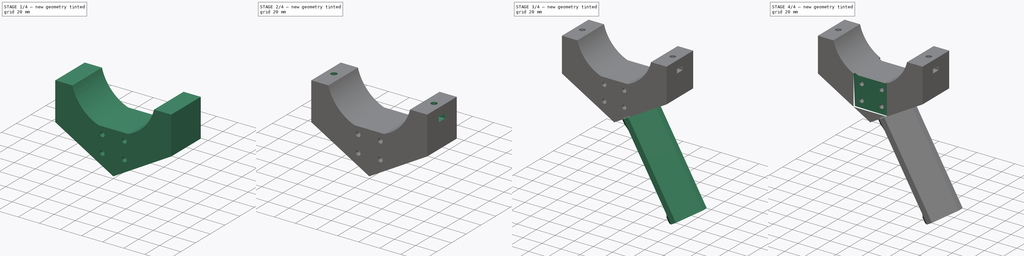
[diagram: build sequence overview — one tinted view per stage of 4, left to right]
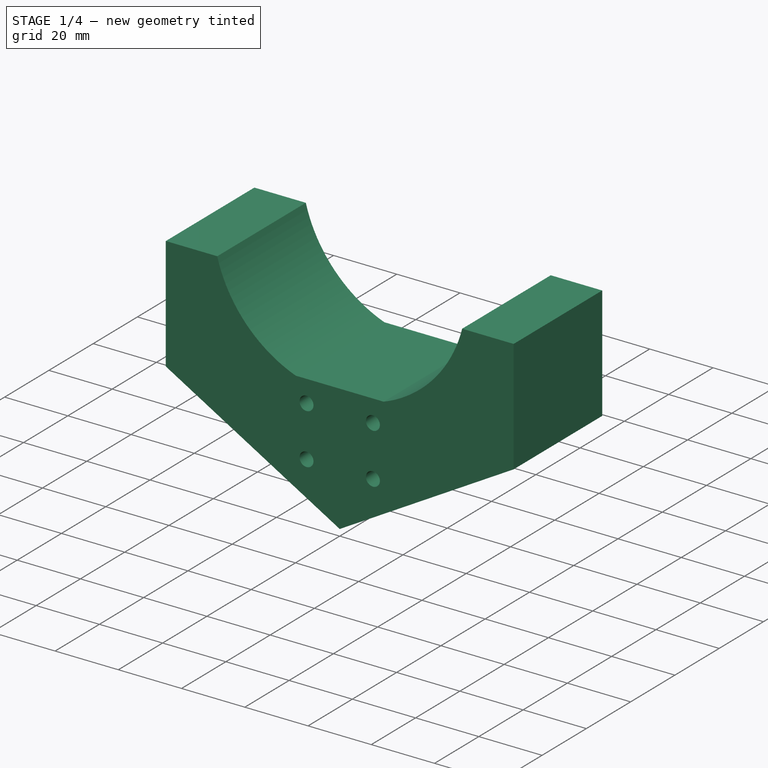
[diagram: stage 1 of 4 — iso view after this stage's code; geometry added in this stage tinted green]
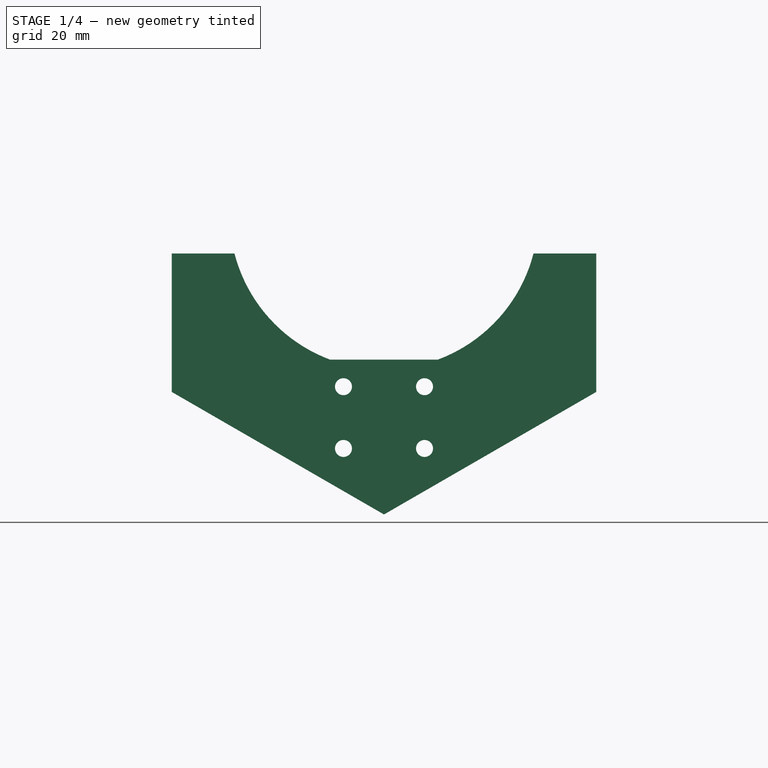
[diagram: stage 1 of 4 — front view after this stage's code; geometry added in this stage tinted green]
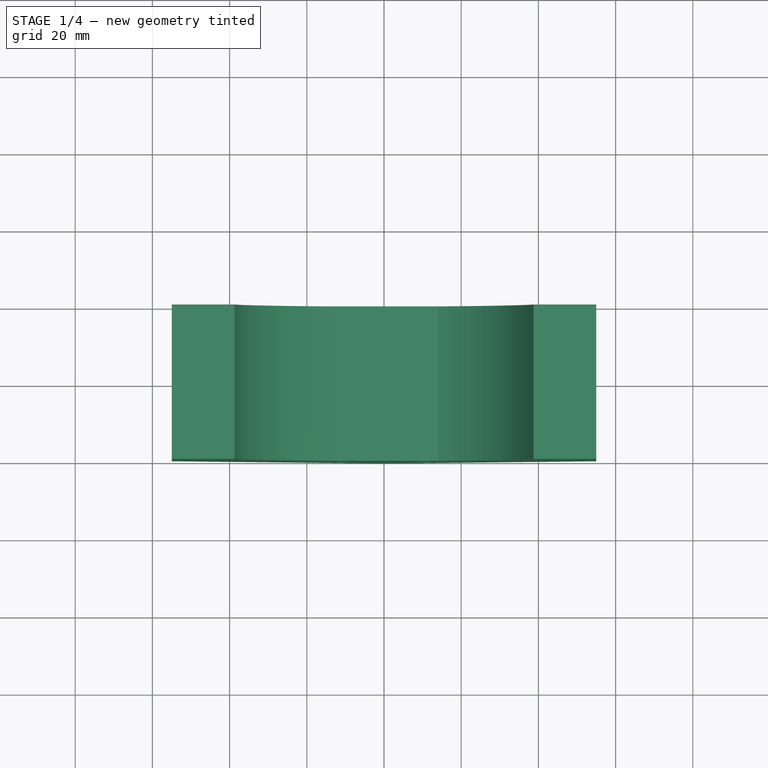
[diagram: stage 1 of 4 — top view after this stage's code; geometry added in this stage tinted green]
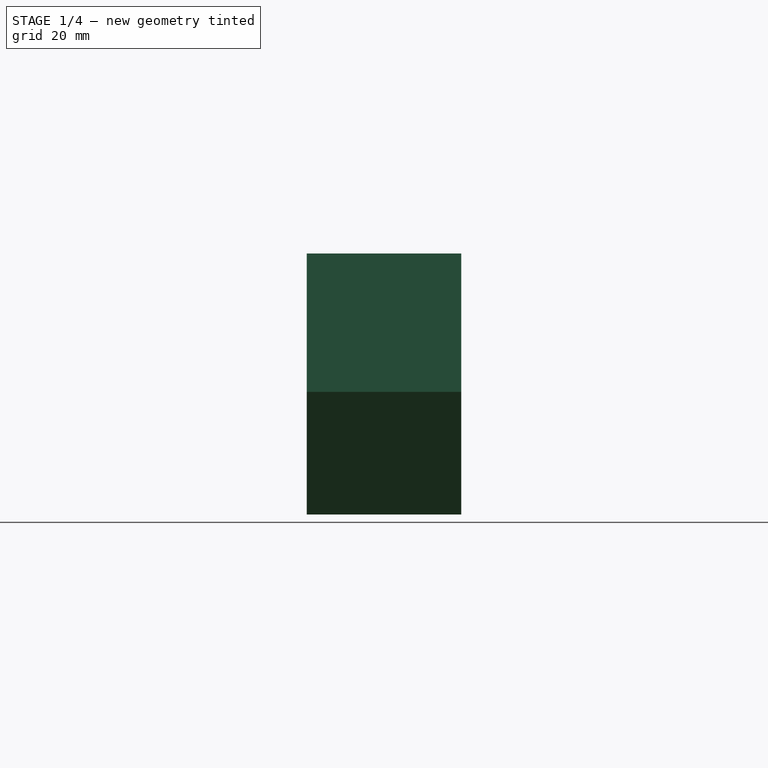
[diagram: stage 1 of 4 — right view after this stage's code; geometry added in this stage tinted green]
FCSTD DOCUMENT  (FreeCAD 0.18.4R)
Label: part6
License: All rights reserved
LicenseURL: http://en.wikipedia.org/wiki/All_rights_reserved
objects: Sketcher::SketchObject×7, PartDesign::Hole×3, PartDesign::Pad×2, PartDesign::Pocket×2, PartDesign::Chamfer×1, PartDesign::Mirrored×1, PartDesign::Body×1, App::Part×1
note: 24 computed .brp shape members not serialized (recipe doc carries the construction recipe); baked Part::Feature solids carry a one-line shape summary decoded from their .brp

FEATURE [Sketcher::SketchObject] Sketch
  MapMode = 5
  Placement = pos=(0,0,0) rot=(1,0,0;1.5708rad)
  Support = -> [XZ_Plane001]
  sketch-geometry (10):
    g0: ArcOfCircle CenterX=-1.36e-14 CenterY=0 CenterZ=0 NormalX=0 NormalY=0 NormalZ=1 AngleXU=0 Radius=40 StartAngle=5.06781 EndAngle=6.03051
    g1: ArcOfCircle CenterX=0 CenterY=0 CenterZ=0 NormalX=0 NormalY=0 NormalZ=1 AngleXU=0 Radius=40 StartAngle=3.39427 EndAngle=4.35697
    g2: LineSegment StartX=38.7298 StartY=-10 StartZ=0 EndX=55 EndY=-10 EndZ=0
    g3: LineSegment StartX=55 StartY=-10 StartZ=0 EndX=55 EndY=-45.8494 EndZ=0
    g4: LineSegment StartX=-55 StartY=-45.8494 StartZ=0 EndX=-55 EndY=-10 EndZ=0
    g5: LineSegment StartX=-55 StartY=-10 StartZ=0 EndX=-38.7298 EndY=-10 EndZ=0
    g6: LineSegment StartX=-13.9194 StartY=-37.5 StartZ=0 EndX=13.9194 EndY=-37.5 EndZ=0
    g7: LineSegment StartX=0 StartY=-77.6036 StartZ=0 EndX=55 EndY=-45.8494 EndZ=0
    g8: LineSegment StartX=-55 StartY=-45.8494 StartZ=0 EndX=0 EndY=-77.6036 EndZ=0
    g9: GeomPoint X=17.5 Y=-67.5 Z=0
  constraints (26):
    c: Coincident(g2,g0)
    c: Horizontal(g2)
    c: Coincident(g3,g2)
    c: Vertical(g3)
    c: Coincident(g5,g4)
    c: Coincident(g5,g1)
    c: Coincident(g6,g1)
    c: Coincident(g6,g0)
    c: Symmetric(g1,g0,g-2)
    c: Symmetric(g1,g0,g-2)
    c: Symmetric(g4,g2,g-2)
    c: Coincident(g1,g-1)
    c: Coincident(g0,g1)
    c: Radius(g0) = 40
    c: DistanceY(g0,g0) = 37.5
    c: DistanceY(g2,g0) = 10
    c: Coincident(g7,g3)
    c: Coincident(g4,g8)
    c: Symmetric(g4,g3,g-2)
    c: DistanceX(g0,g2) = 55
    c: Coincident(g8,g7)
    c: PointOnObject(g7,g-2)
    c: PointOnObject(g9,g7)
    c: DistanceY(g9,g0) = 30
    c: Angle(g7,g8) = 2.0944
    c: DistanceX(g7,g9) = 17.5
FEATURE [PartDesign::Pad] Pad
  Length = 40
  Length2 = 100
  Midplane = true
  Placement = pos=(0,0,0) rot=(1,0,0;1.5708rad)
  Profile = -> Sketch
  Type = 0
FEATURE [Sketcher::SketchObject] Sketch003
  MapMode = 5
  Placement = pos=(0,-20,-4e-15) rot=(1,0,0;1.5708rad)
  sketch-geometry (4):
    g0: Circle CenterX=-10.5 CenterY=-44.5 CenterZ=0 NormalX=0 NormalY=0 NormalZ=1 AngleXU=0 Radius=1.62677
    g1: Circle CenterX=10.5 CenterY=-44.5 CenterZ=0 NormalX=0 NormalY=0 NormalZ=1 AngleXU=0 Radius=1.92791
    g2: Circle CenterX=-10.5 CenterY=-60.5 CenterZ=0 NormalX=0 NormalY=0 NormalZ=1 AngleXU=0 Radius=3.05559
    g3: Circle CenterX=10.5 CenterY=-60.5 CenterZ=0 NormalX=0 NormalY=0 NormalZ=1 AngleXU=0 Radius=2.70732
  constraints (6):
    c: Symmetric(g0,g1,g-2)
    c: Symmetric(g2,g3,g-2)
    c: DistanceX(g0,g1) = 21
    c: DistanceX(g2,g3) = 21
    c: DistanceY(g3,g1) = 16
    c: DistanceY(g3,g-1) = 60.5
FEATURE [PartDesign::Hole] Hole
  BaseFeature = -> Pad
  Depth = 25
  DepthType = 1
  Diameter = 4.4
  DrillPoint = 0
  DrillPointAngle = 118
  HoleCutCountersinkAngle = 90
  HoleCutDepth = 0
  HoleCutDiameter = 4
  HoleCutType = 0
  ModelActualThread = false
  Placement = pos=(0,0,0) rot=(1,0,0;1.5708rad)
  Profile = -> Sketch003
  Tapered = false
  TaperedAngle = 90
  ThreadAngle = 0
  ThreadClass = 0
  ThreadCutOffInner = 0
  ThreadCutOffOuter = 0
  ThreadDirection = 0
  ThreadFit = 0
  ThreadPitch = 0
  ThreadSize = 5
  ThreadType = 1
  Threaded = false
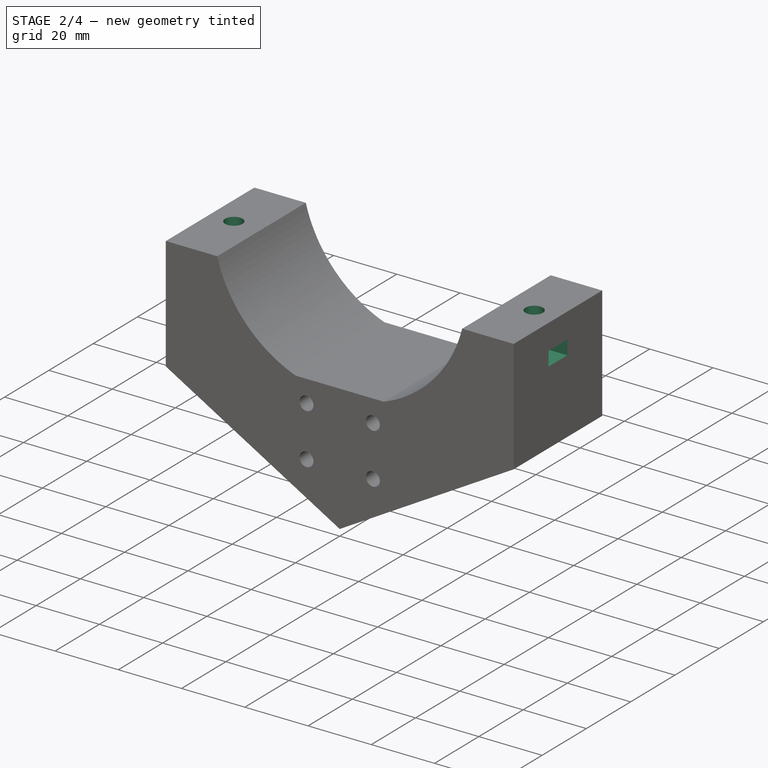
[diagram: stage 2 of 4 — iso view after this stage's code; geometry added in this stage tinted green]
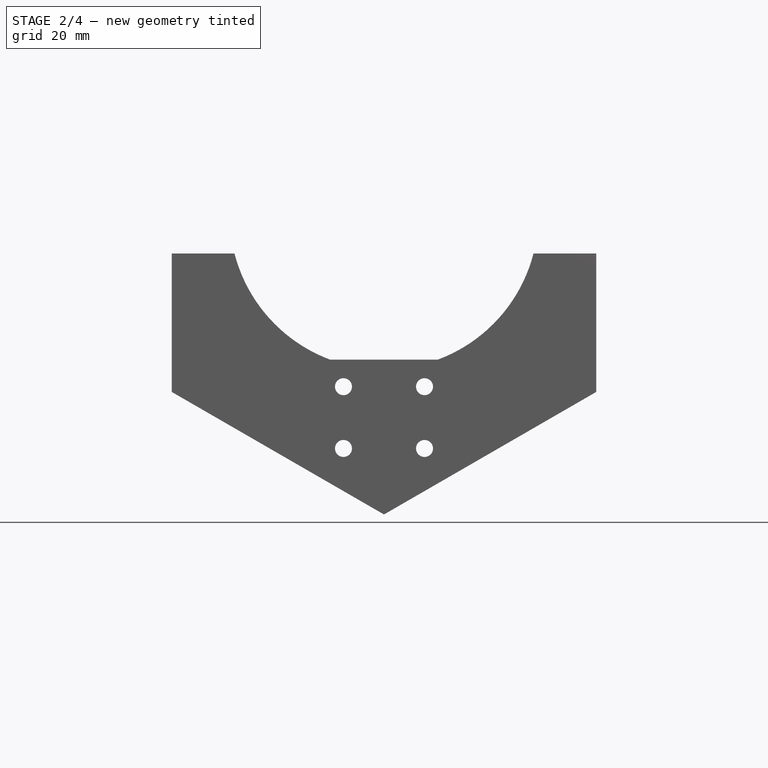
[diagram: stage 2 of 4 — front view after this stage's code; geometry added in this stage tinted green]
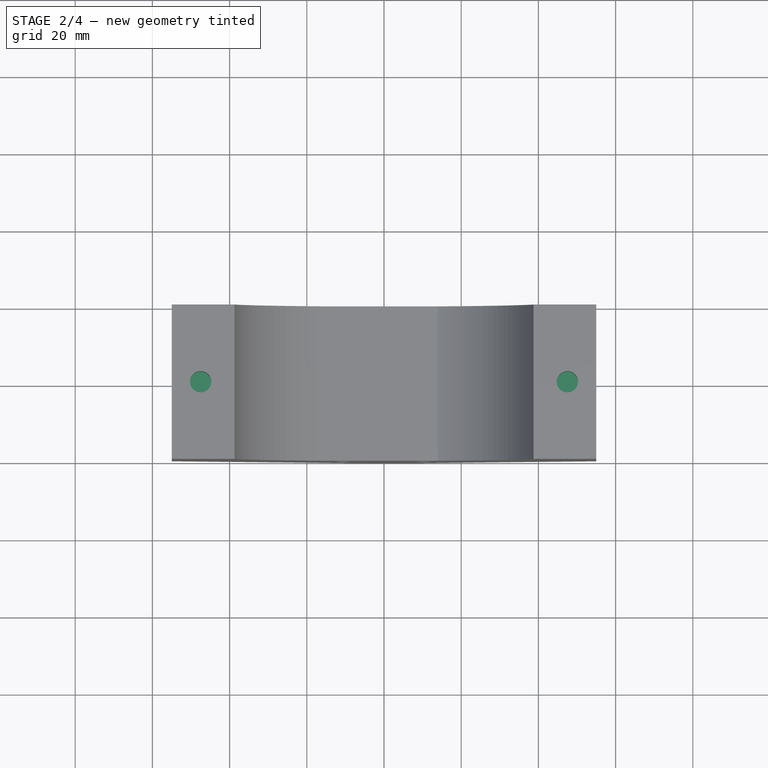
[diagram: stage 2 of 4 — top view after this stage's code; geometry added in this stage tinted green]
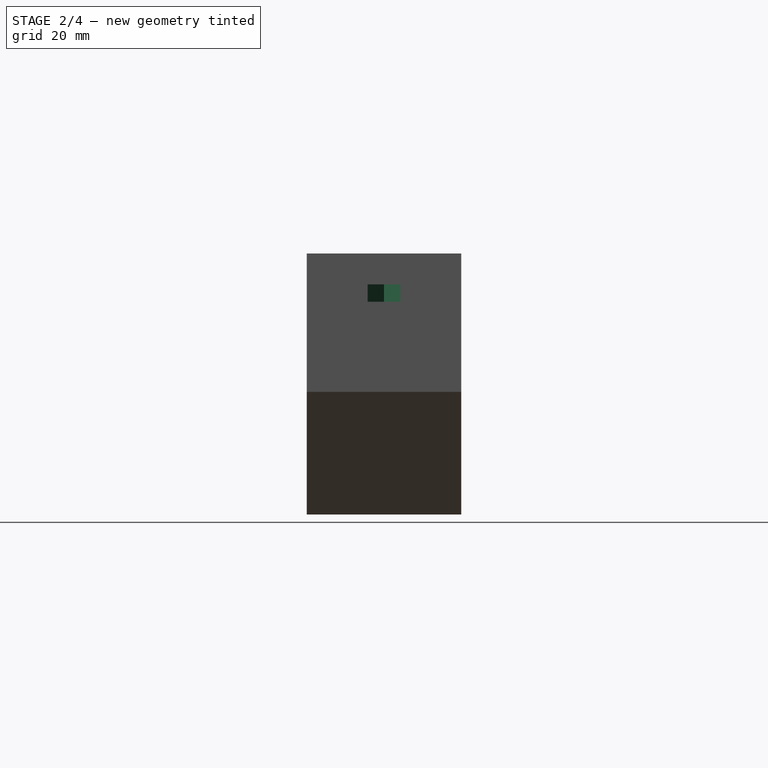
[diagram: stage 2 of 4 — right view after this stage's code; geometry added in this stage tinted green]
FEATURE [Sketcher::SketchObject] Sketch006
  AttachmentOffset = pos=(0,0,-8) rot=(0,0,1;0rad)
  MapMode = 5
  Placement = pos=(0,4e-15,-18) rot=(0,0,1;3.14159rad)
  sketch-geometry (10):
    g0: LineSegment StartX=55 StartY=4.25 StartZ=0 EndX=45.0463 EndY=4.25 EndZ=0
    g1: LineSegment StartX=45.0463 StartY=4.25 StartZ=0 EndX=42.5925 EndY=0 EndZ=0
    g2: LineSegment StartX=42.5925 StartY=0 StartZ=0 EndX=45.0463 EndY=-4.25 EndZ=0
    g3: LineSegment StartX=45.0463 StartY=-4.25 StartZ=0 EndX=55 EndY=-4.25 EndZ=0
    g4: LineSegment StartX=55 StartY=-4.25 StartZ=0 EndX=55 EndY=4.25 EndZ=0
    g5: LineSegment StartX=-55 StartY=4.25 StartZ=0 EndX=-55 EndY=-4.25 EndZ=0
    g6: LineSegment StartX=-55 StartY=-4.25 StartZ=0 EndX=-45.0463 EndY=-4.25 EndZ=0
    g7: LineSegment StartX=-45.0463 StartY=-4.25 StartZ=0 EndX=-42.5925 EndY=0 EndZ=0
    g8: LineSegment StartX=-42.5925 StartY=0 StartZ=0 EndX=-45.0463 EndY=4.25 EndZ=0
    g9: LineSegment StartX=-45.0463 StartY=4.25 StartZ=0 EndX=-55 EndY=4.25 EndZ=0
  constraints (25):
    c: Coincident(g0,g1)
    c: Coincident(g1,g2)
    c: Coincident(g2,g3)
    c: Coincident(g3,g4)
    c: Coincident(g4,g0)
    c: Coincident(g5,g6)
    c: Coincident(g6,g7)
    c: Coincident(g7,g8)
    c: Coincident(g8,g9)
    c: Coincident(g9,g5)
    c: Symmetric(g1,g7,g-2)
    c: Symmetric(g6,g2,g-2)
    c: Symmetric(g8,g0,g-2)
    c: Symmetric(g5,g0,g-2)
    c: Symmetric(g5,g3,g-2)
    c: Vertical(g4)
    c: Horizontal(g0)
    c: Horizontal(g3)
    c: Angle(g1,g0) = 2.0944
    c: Angle(g3,g2) = 2.0944
    c: Equal(g2,g1)
    c: DistanceX(g5,g0) = 110
    c: PointOnObject(g1,g-1)
    c: DistanceY(g3,g0) = 8.5
    c: DistanceX(g1,g0) = 12.4075
FEATURE [Sketcher::SketchObject] Sketch009
  MapMode = 5
  Placement = pos=(0,20,0) rot=(-1,0,0;1.5708rad)
  sketch-geometry (4):
    g0: LineSegment StartX=-17.5 StartY=0 StartZ=0 EndX=17.5 EndY=0 EndZ=0
    g1: LineSegment StartX=17.5 StartY=0 StartZ=0 EndX=17.5 EndY=67.5 EndZ=0
    g2: LineSegment StartX=17.5 StartY=67.5 StartZ=0 EndX=-17.5 EndY=67.5 EndZ=0
    g3: LineSegment StartX=-17.5 StartY=67.5 StartZ=0 EndX=-17.5 EndY=0 EndZ=0
  constraints (10):
    c: Coincident(g0,g1)
    c: Coincident(g1,g2)
    c: Coincident(g2,g3)
    c: Coincident(g3,g0)
    c: Vertical(g1)
    c: Symmetric(g0,g0,g-2)
    c: Symmetric(g2,g1,g-2)
    c: PointOnObject(g0,g-1)
    c: DistanceY(g0,g1) = 67.5
    c: DistanceX(g2,g2) = 35
FEATURE [PartDesign::Pocket] Pocket001
  BaseFeature = -> Hole
  Length = 4.5
  Length2 = 100
  Placement = pos=(0,0,0) rot=(1,0,0;1.5708rad)
  Profile = -> Sketch006
  Type = 0
FEATURE [Sketcher::SketchObject] Sketch007
  MapMode = 5
  Placement = pos=(0,2.2e-15,-10) rot=(0,0,1;3.14159rad)
  Support = -> [Pocket001]
  sketch-geometry (2):
    g0: Circle CenterX=47.5 CenterY=0 CenterZ=0 NormalX=0 NormalY=0 NormalZ=1 AngleXU=0 Radius=4.34144
    g1: Circle CenterX=-47.5 CenterY=0 CenterZ=0 NormalX=0 NormalY=0 NormalZ=1 AngleXU=0 Radius=2.81048
  constraints (3):
    c: PointOnObject(g1,g-1)
    c: Symmetric(g1,g0,g-2)
    c: DistanceX(g1,g0) = 95
FEATURE [PartDesign::Hole] Hole001
  BaseFeature = -> Pocket001
  Depth = 12
  DepthType = 0
  Diameter = 5.5
  DrillPoint = 0
  DrillPointAngle = 118
  HoleCutCountersinkAngle = 90
  HoleCutDepth = 0
  HoleCutDiameter = 5
  HoleCutType = 0
  ModelActualThread = false
  Placement = pos=(0,0,0) rot=(1,0,0;1.5708rad)
  Profile = -> Sketch007
  Tapered = false
  TaperedAngle = 90
  ThreadAngle = 0
  ThreadClass = 0
  ThreadCutOffInner = 0
  ThreadCutOffOuter = 0
  ThreadDirection = 0
  ThreadFit = 0
  ThreadPitch = 0
  ThreadSize = 6
  ThreadType = 1
  Threaded = false
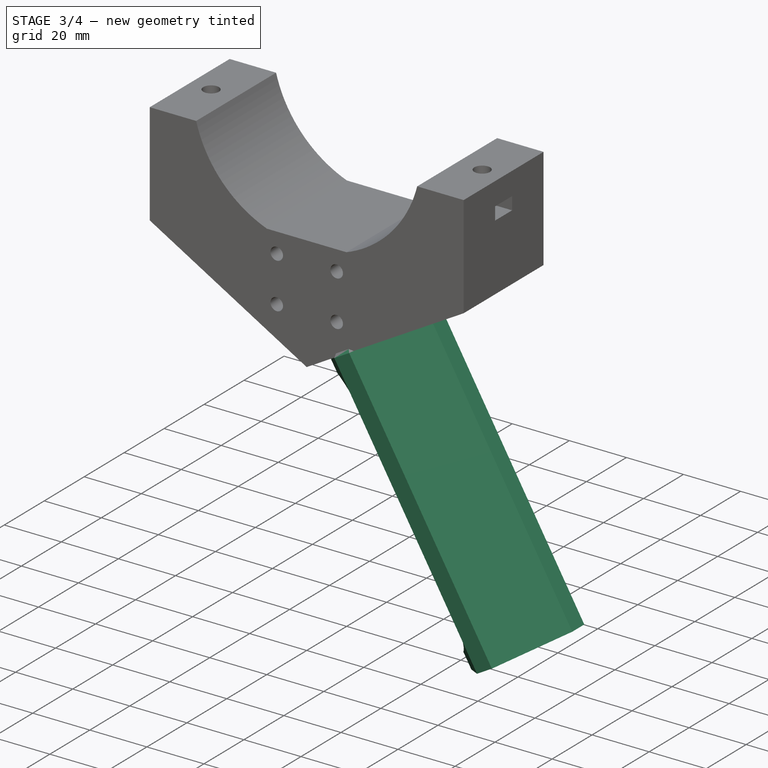
[diagram: stage 3 of 4 — iso view after this stage's code; geometry added in this stage tinted green]
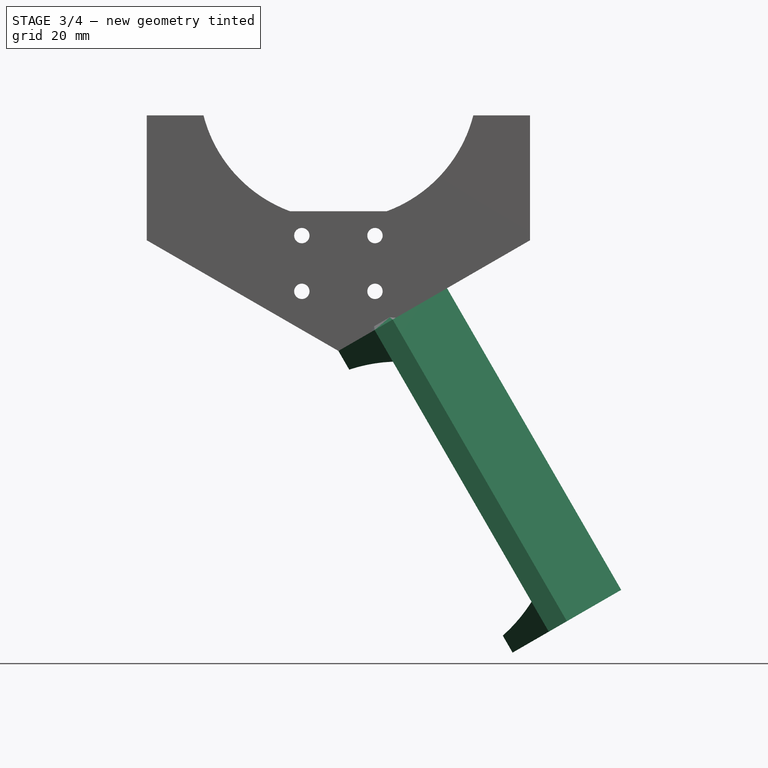
[diagram: stage 3 of 4 — front view after this stage's code; geometry added in this stage tinted green]
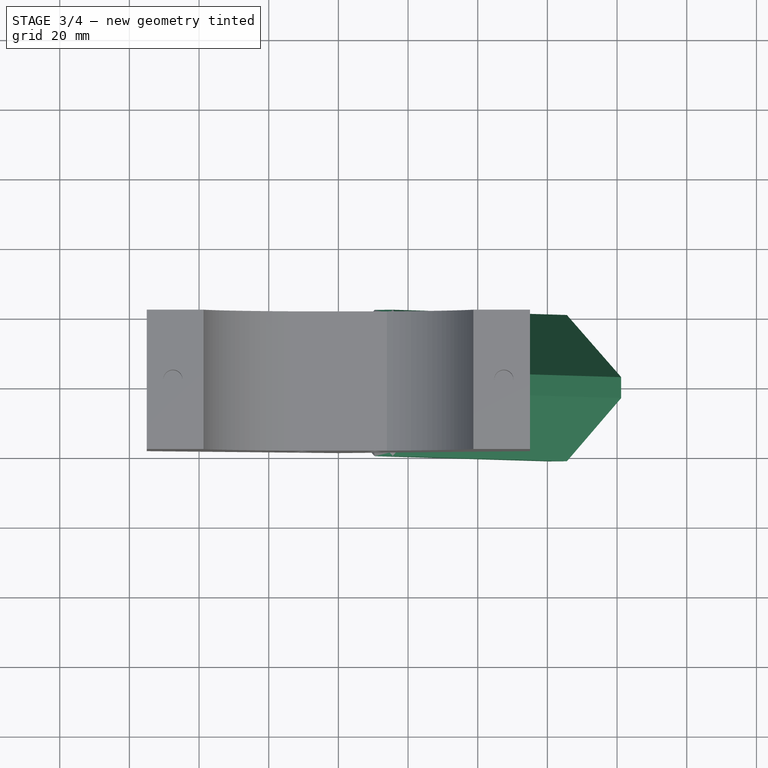
[diagram: stage 3 of 4 — top view after this stage's code; geometry added in this stage tinted green]
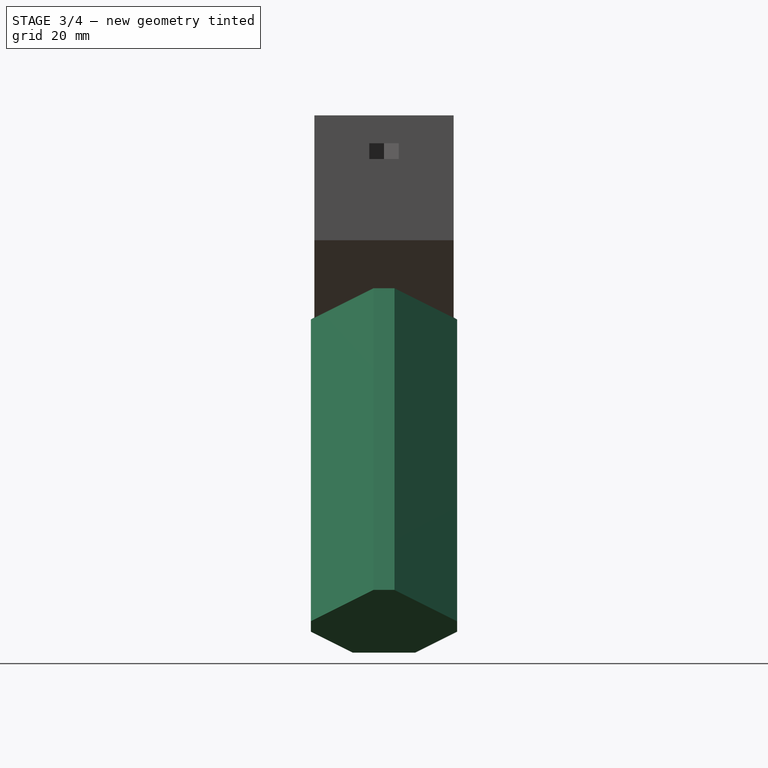
[diagram: stage 3 of 4 — right view after this stage's code; geometry added in this stage tinted green]
FEATURE [Sketcher::SketchObject] Sketch010
  AttachmentOffset = pos=(0,0,-1) rot=(0,0,1;0rad)
  MapMode = 5
  Placement = pos=(33.1034,1.27e-14,-57.3367) rot=(0.965926,0,0.258819;3.14159rad)
  Support = -> [Hole001]
  sketch-geometry (8):
    g0: LineSegment StartX=-38.8 StartY=9 StartZ=0 EndX=-38.8 EndY=-9 EndZ=0
    g1: LineSegment StartX=-38.8 StartY=-9 StartZ=0 EndX=-26.8 EndY=-21 EndZ=0
    g2: LineSegment StartX=-26.8 StartY=-21 StartZ=0 EndX=-20.8 EndY=-21 EndZ=0
    g3: LineSegment StartX=-20.8 StartY=-21 StartZ=0 EndX=-2.8 EndY=-3 EndZ=0
    g4: LineSegment StartX=-2.8 StartY=-3 StartZ=0 EndX=-2.8 EndY=3 EndZ=0
    g5: LineSegment StartX=-2.8 StartY=3 StartZ=0 EndX=-20.8 EndY=21 EndZ=0
    g6: LineSegment StartX=-20.8 StartY=21 StartZ=0 EndX=-26.8 EndY=21 EndZ=0
    g7: LineSegment StartX=-26.8 StartY=21 StartZ=0 EndX=-38.8 EndY=9 EndZ=0
  constraints (21):
    c: Coincident(g0,g1)
    c: Coincident(g1,g2)
    c: Coincident(g2,g3)
    c: Coincident(g3,g4)
    c: Coincident(g4,g5)
    c: Coincident(g5,g6)
    c: Coincident(g6,g7)
    c: Coincident(g7,g0)
    c: Symmetric(g0,g0,g-1)
    c: Symmetric(g6,g1,g-1)
    c: Symmetric(g5,g2,g-1)
    c: Symmetric(g4,g3,g-1)
    c: Horizontal(g6)
    c: Equal(g6,g4)
    c: Equal(g4,g2)
    c: DistanceY(g4,g4) = 6
    c: DistanceY(g0,g0) = 18
    c: Angle(g0,g7) = 2.35619
    c: Angle(g5,g4) = 2.35619
    c: DistanceY(g2,g5) = 42
    c: DistanceX(g0,g-1) = 38.8
FEATURE [PartDesign::Pad] Pad001
  BaseFeature = -> Hole001
  Length = 101
  Length2 = 100
  Placement = pos=(0,0,0) rot=(1,0,0;1.5708rad)
  Profile = -> Sketch010
  Type = 0
FEATURE [Sketcher::SketchObject] Sketch011
  MapMode = 5
  Placement = pos=(-33.6018,4.3e-15,-19.4) rot=(0.866025,0,-0.5;3.14159rad)
  Support = -> [Pad001]
  sketch-geometry (1):
    g0: Circle CenterX=117.5 CenterY=0 CenterZ=0 NormalX=0 NormalY=0 NormalZ=1 AngleXU=0 Radius=14.4343
  constraints (2):
    c: PointOnObject(g0,g-1)
    c: DistanceX(g-1,g0) = 117.5
FEATURE [PartDesign::Hole] Hole002
  BaseFeature = -> Pad001
  Depth = 12
  DepthType = 0
  Diameter = 90
  DrillPoint = 0
  DrillPointAngle = 118
  HoleCutCountersinkAngle = 90
  HoleCutDepth = 0
  HoleCutDiameter = 0
  HoleCutType = 0
  ModelActualThread = false
  Placement = pos=(0,0,0) rot=(1,0,0;1.5708rad)
  Profile = -> Sketch011
  Tapered = false
  TaperedAngle = 90
  ThreadAngle = 0
  ThreadClass = 0
  ThreadCutOffInner = 0
  ThreadCutOffOuter = 0
  ThreadDirection = 0
  ThreadFit = 0
  ThreadPitch = 0
  ThreadSize = 0
  ThreadType = 0
  Threaded = false
FEATURE [PartDesign::Chamfer] Chamfer
  Base = -> Hole002 [Edge58,Edge63,Edge62,Edge89,Edge88,Edge84]
  BaseFeature = -> Hole002
  Placement = pos=(0,0,0) rot=(1,0,0;1.5708rad)
  Size = 0.99
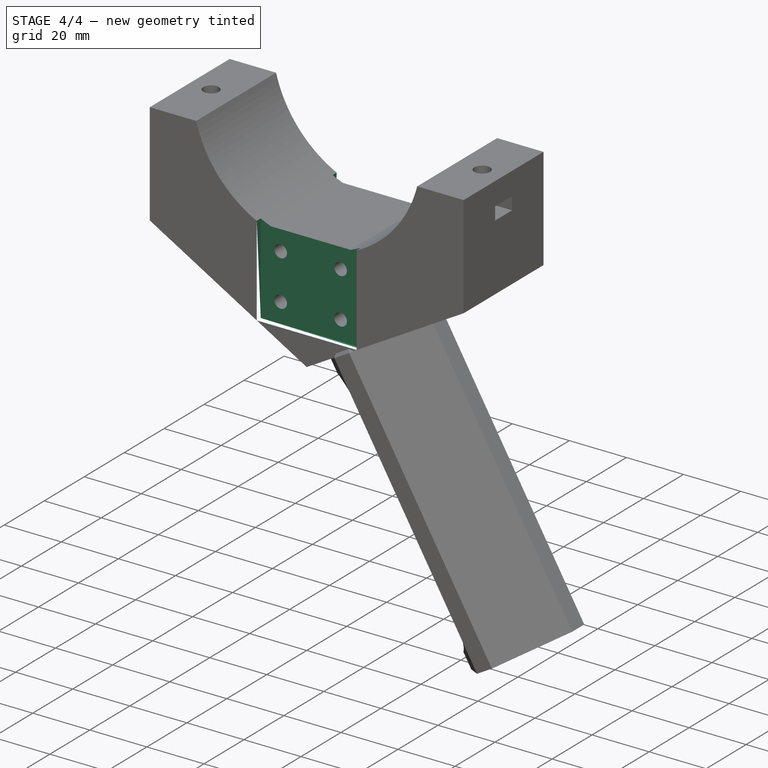
[diagram: stage 4 of 4 — iso view after this stage's code; geometry added in this stage tinted green]
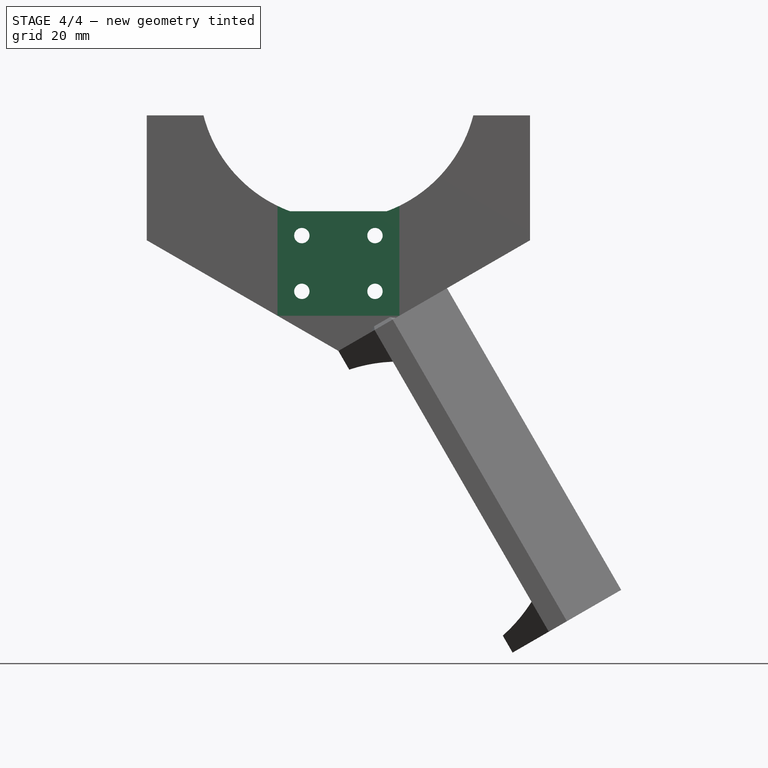
[diagram: stage 4 of 4 — front view after this stage's code; geometry added in this stage tinted green]
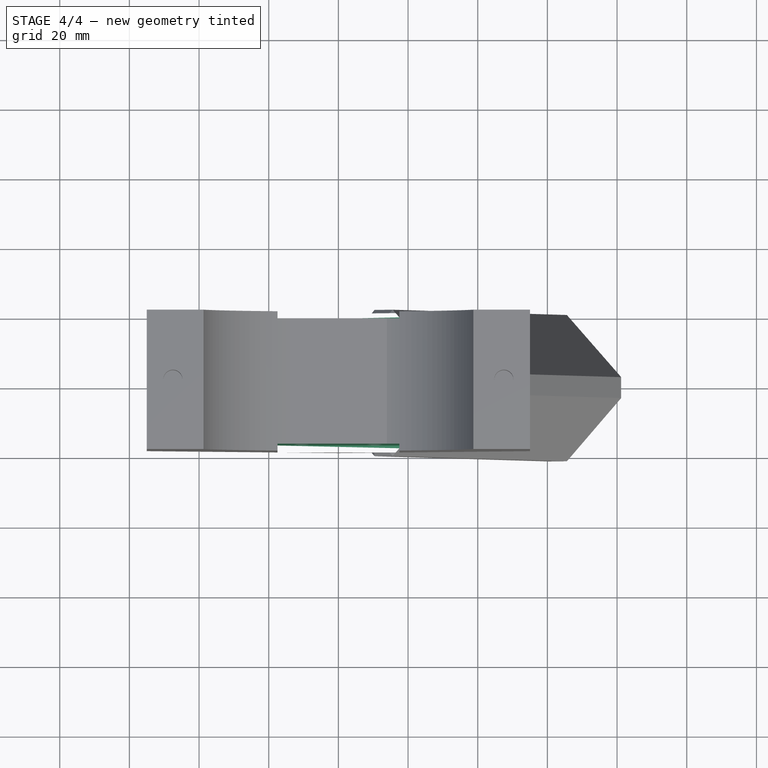
[diagram: stage 4 of 4 — top view after this stage's code; geometry added in this stage tinted green]
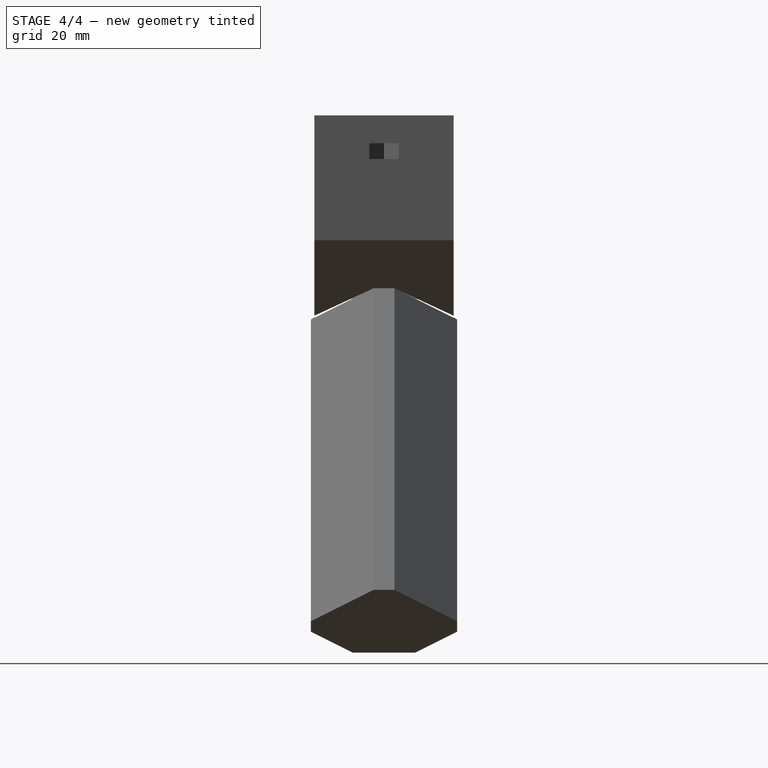
[diagram: stage 4 of 4 — right view after this stage's code; geometry added in this stage tinted green]
FEATURE [PartDesign::Pocket] Pocket
  BaseFeature = -> Chamfer
  Length = 2
  Length2 = 100
  Placement = pos=(0,0,0) rot=(1,0,0;1.5708rad)
  Profile = -> Sketch009
  Type = 0
FEATURE [PartDesign::Mirrored] Mirrored
  BaseFeature = -> Pocket
  MirrorPlane = -> XZ_Plane001
  Originals = -> [Pocket]
  Placement = pos=(0,0,0) rot=(1,0,0;1.5708rad)
FEATURE [PartDesign::Body] Body
  Group = -> [Sketch,Pad,Sketch003,Hole,Sketch006,Pocket001,Sketch007,Hole001,Sketch009,Sketch010,Pad001,Sketch011,Hole002,Chamfer,Pocket,Mirrored]
  Origin = -> Origin001
  Tip = -> Mirrored
FEATURE [App::Part] Part  label="part6"
  Group = -> [Body]
  Origin = -> Origin
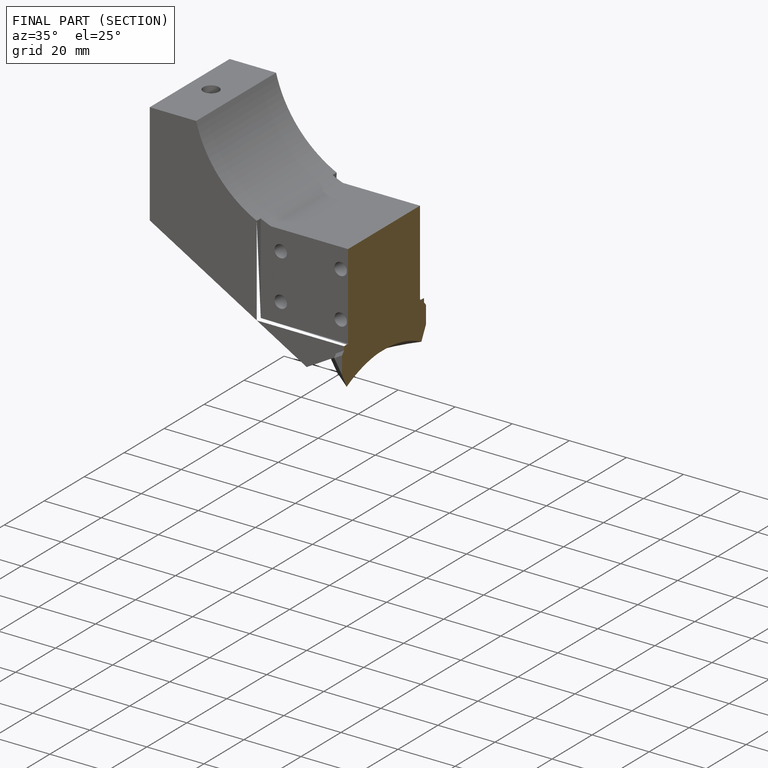
[diagram: finished part — half-section view (interior)]
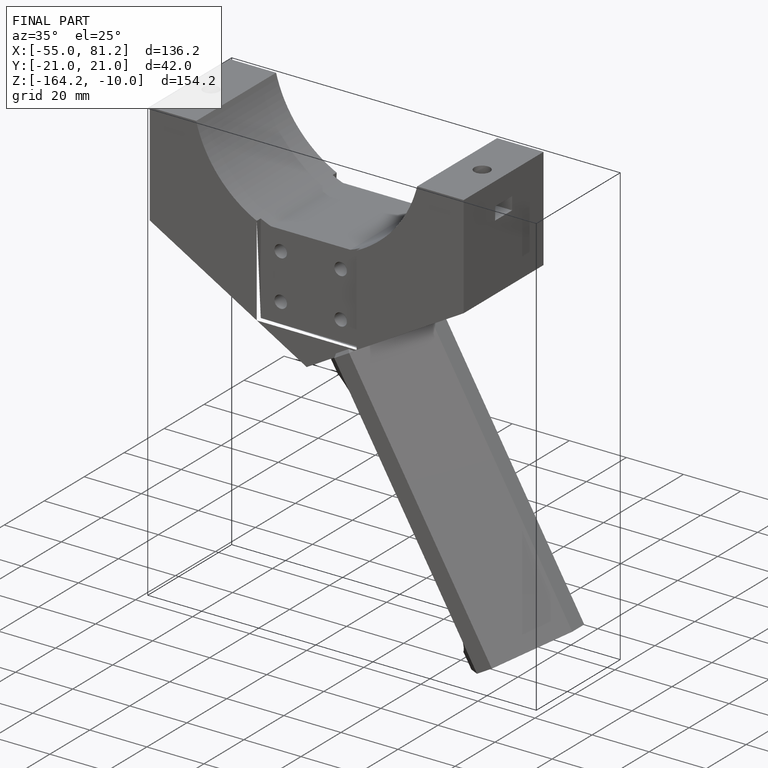
[diagram: finished part — iso view with bounding-box wireframe]
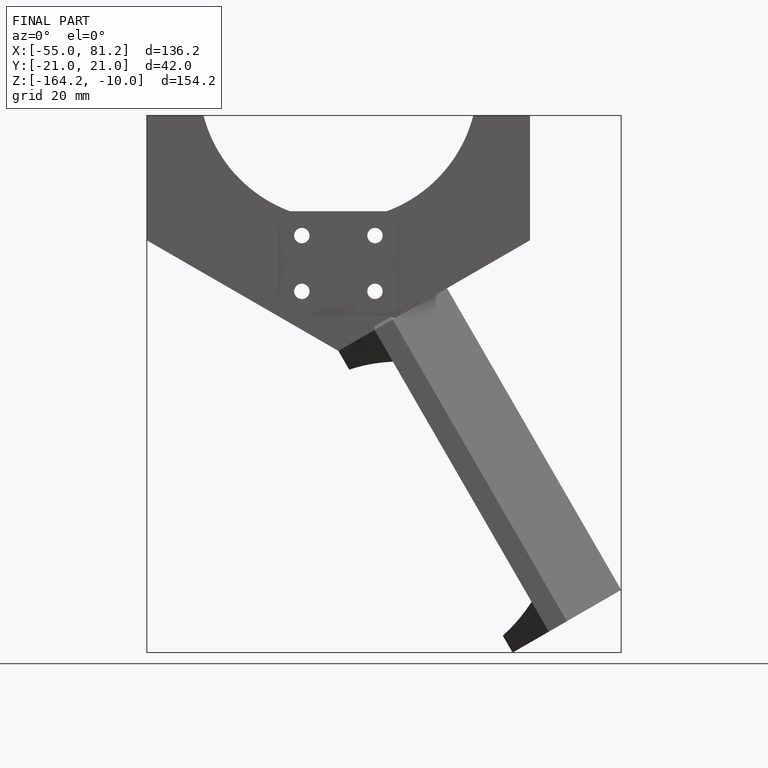
[diagram: finished part — front view with bounding-box wireframe]
